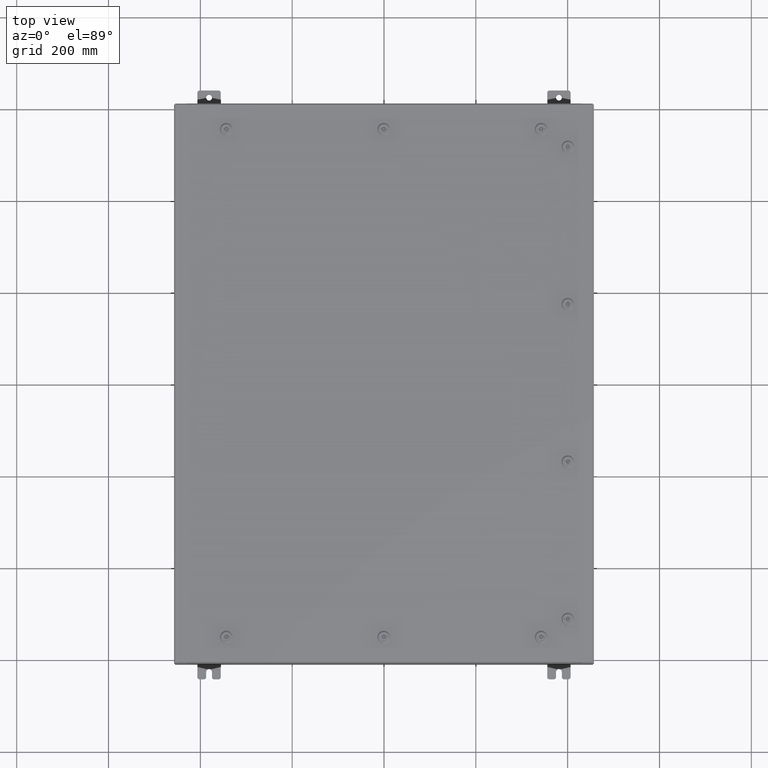
[diagram: clean part render]
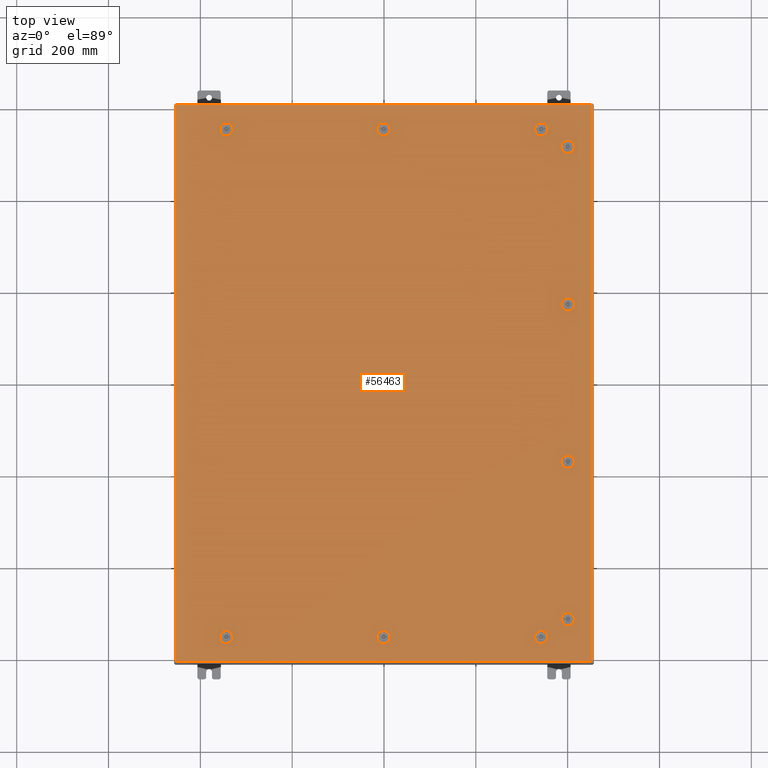
[diagram: same view with one face highlighted and labeled with its STEP entity id]
A machine part, top view. The second image highlights one B-rep face of the part: STEP entity #56463.
In plain terms, the highlighted planar face has unit normal (0, 0, -1).
Its self-contained STEP definition (entity closure, byte-faithful):
#151 = DIRECTION ( 'NONE',  ( -0.0000000000000000000, -6.982962677686266700E-015, 1.000000000000000000 ) ) ;
#445 = LINE ( 'NONE', #2456, #28657 ) ;
#452 = VERTEX_POINT ( 'NONE', #40778 ) ;
#481 = CARTESIAN_POINT ( 'NONE',  ( -13.30054762473209500, -22.18280000000000400, -2.548900087721007400E-013 ) ) ;
#813 = DIRECTION ( 'NONE',  ( -0.0000000000000000000, -6.982962677686266700E-015, 1.000000000000000000 ) ) ;
#815 = DIRECTION ( 'NONE',  ( 0.0000000000000000000, 0.0000000000000000000, 1.000000000000000000 ) ) ;
#875 = CARTESIAN_POINT ( 'NONE',  ( 13.49999999999998600, -21.78780000000000400, -1.578617423656501800E-013 ) ) ;
#877 = EDGE_CURVE ( 'NONE', #452, #2159, #38485, .T. ) ;
#1040 = CARTESIAN_POINT ( 'NONE',  ( 16.18280000000000400, -6.949452375267900300, -4.852776656685392100E-014 ) ) ;
#1126 = FACE_OUTER_BOUND ( 'NONE', #4328, .T. ) ;
#1423 = AXIS2_PLACEMENT_3D ( 'NONE', #13598, #50702, #18946 ) ;
#1432 = CARTESIAN_POINT ( 'NONE',  ( 17.84980000000000200, 23.84980000000000900, 1.946441695485787500E-015 ) ) ;
#1576 = CARTESIAN_POINT ( 'NONE',  ( 16.18280000000000700, 6.550547624732131700, 0.0000000000000000000 ) ) ;
#1625 = CIRCLE ( 'NONE', #2237, 0.4424999999999961700 ) ;
#2030 = DIRECTION ( 'NONE',  ( -5.478697338139235000E-015, 1.000000000000000000, -0.0000000000000000000 ) ) ;
#2127 = DIRECTION ( 'NONE',  ( -1.095739467627844000E-014, -1.000000000000000000, 0.0000000000000000000 ) ) ;
#2159 = VERTEX_POINT ( 'NONE', #36808 ) ;
#2195 = VERTEX_POINT ( 'NONE', #5767 ) ;
#2237 = AXIS2_PLACEMENT_3D ( 'NONE', #15141, #52259, #20482 ) ;
#2456 = CARTESIAN_POINT ( 'NONE',  ( 13.30054762473209400, 22.18280000000000000, -9.287722765629296100E-014 ) ) ;
#2662 = CARTESIAN_POINT ( 'NONE',  ( 13.30054762473210400, -21.39280000000001200, -1.564962406004356200E-013 ) ) ;
#2777 = FACE_BOUND ( 'NONE', #27566, .T. ) ;
#2853 = VERTEX_POINT ( 'NONE', #37448 ) ;
#2885 = VECTOR ( 'NONE', #3082, 39.37007874015748100 ) ;
#3082 = DIRECTION ( 'NONE',  ( -1.000000000000000000, 1.095739467627836100E-014, 0.0000000000000000000 ) ) ;
#3133 = CARTESIAN_POINT ( 'NONE',  ( 16.18280000000001800, -20.05054762473213300, -1.400122257306754800E-013 ) ) ;
#3538 = LINE ( 'NONE', #48995, #44188 ) ;
#3546 = AXIS2_PLACEMENT_3D ( 'NONE', #23193, #60347, #28514 ) ;
#3823 = CIRCLE ( 'NONE', #20616, 0.4424999999999972800 ) ;
#3922 = DIRECTION ( 'NONE',  ( 1.000000000000000000, 1.095739467627836100E-014, 7.785697190085984100E-029 ) ) ;
#4009 = EDGE_CURVE ( 'NONE', #50818, #5964, #62546, .T. ) ;
#4328 = EDGE_LOOP ( 'NONE', ( #17079, #39487, #10814, #16905 ) ) ;
#4430 = FACE_BOUND ( 'NONE', #34896, .T. ) ;
#4479 = EDGE_CURVE ( 'NONE', #15320, #58513, #3538, .T. ) ;
#4734 = CARTESIAN_POINT ( 'NONE',  ( -13.69945237526786700, 22.18280000000000400, 0.0000000000000000000 ) ) ;
#4748 = DIRECTION ( 'NONE',  ( -1.000000000000000000, 0.0000000000000000000, 6.982962677686269100E-015 ) ) ;
#5767 = CARTESIAN_POINT ( 'NONE',  ( 16.18280000000001500, 20.05054762473213300, 0.0000000000000000000 ) ) ;
#5881 = EDGE_CURVE ( 'NONE', #43868, #6467, #44929, .T. ) ;
#5955 = DIRECTION ( 'NONE',  ( -0.0000000000000000000, -6.982962677686266700E-015, 1.000000000000000000 ) ) ;
#5964 = VERTEX_POINT ( 'NONE', #30750 ) ;
#6219 = DIRECTION ( 'NONE',  ( 1.000000000000000000, 0.0000000000000000000, 6.982962677686270700E-015 ) ) ;
#6289 = DIRECTION ( 'NONE',  ( 1.000000000000000000, -0.0000000000000000000, -0.0000000000000000000 ) ) ;
#6408 = CIRCLE ( 'NONE', #31101, 0.4424999999999983400 ) ;
#6467 = VERTEX_POINT ( 'NONE', #51340 ) ;
#6528 = VERTEX_POINT ( 'NONE', #30692 ) ;
#7173 = AXIS2_PLACEMENT_3D ( 'NONE', #50353, #18557, #55689 ) ;
#7189 = AXIS2_PLACEMENT_3D ( 'NONE', #52281, #20510, #57631 ) ;
#7622 = ORIENTED_EDGE ( 'NONE', *, *, #16615, .F. ) ;
#7666 = VERTEX_POINT ( 'NONE', #2662 ) ;
#7702 = VECTOR ( 'NONE', #11515, 39.37007874015748100 ) ;
#7751 = VECTOR ( 'NONE', #41188, 39.37007874015748100 ) ;
#8382 = DIRECTION ( 'NONE',  ( 0.0000000000000000000, 0.0000000000000000000, 1.000000000000000000 ) ) ;
#8643 = ORIENTED_EDGE ( 'NONE', *, *, #53830, .F. ) ;
#8754 = VERTEX_POINT ( 'NONE', #10001 ) ;
#8929 = AXIS2_PLACEMENT_3D ( 'NONE', #36238, #5955, #43013 ) ;
#8992 = ORIENTED_EDGE ( 'NONE', *, *, #59844, .F. ) ;
#9014 = EDGE_CURVE ( 'NONE', #38780, #31095, #39749, .T. ) ;
#9264 = CIRCLE ( 'NONE', #67252, 0.4424999999999961700 ) ;
#9430 = CARTESIAN_POINT ( 'NONE',  ( 15.39280000000001500, -6.949452375267904700, -4.852776656685395200E-014 ) ) ;
#9432 = ORIENTED_EDGE ( 'NONE', *, *, #45145, .F. ) ;
#9568 = LINE ( 'NONE', #28087, #36096 ) ;
#9653 = CARTESIAN_POINT ( 'NONE',  ( 15.39280000000001400, 6.550547624732131700, 0.0000000000000000000 ) ) ;
#9680 = EDGE_LOOP ( 'NONE', ( #50537, #67334, #18964, #8643 ) ) ;
#9976 = DIRECTION ( 'NONE',  ( 0.0000000000000000000, -1.000000000000000000, 0.0000000000000000000 ) ) ;
#10001 = CARTESIAN_POINT ( 'NONE',  ( -0.1994523752678657400, -22.18280000000000700, 0.0000000000000000000 ) ) ;
#10114 = EDGE_CURVE ( 'NONE', #55542, #66249, #43801, .T. ) ;
#10220 = AXIS2_PLACEMENT_3D ( 'NONE', #19849, #56960, #25167 ) ;
#10325 = DIRECTION ( 'NONE',  ( 0.0000000000000000000, 0.0000000000000000000, 1.000000000000000000 ) ) ;
#10358 = ORIENTED_EDGE ( 'NONE', *, *, #11669, .F. ) ;
#10391 = DIRECTION ( 'NONE',  ( -1.000000000000000000, 0.0000000000000000000, 7.785697190086061500E-029 ) ) ;
#10797 = CARTESIAN_POINT ( 'NONE',  ( 13.94249999999998500, -21.78780000000000400, -1.547717813807740000E-013 ) ) ;
#10814 = ORIENTED_EDGE ( 'NONE', *, *, #13343, .T. ) ;
#10947 = CIRCLE ( 'NONE', #8929, 0.4424999999999983400 ) ;
#11170 = CIRCLE ( 'NONE', #68373, 0.4424999999999983400 ) ;
#11291 = VERTEX_POINT ( 'NONE', #39194 ) ;
#11375 = VERTEX_POINT ( 'NONE', #23438 ) ;
#11383 = EDGE_CURVE ( 'NONE', #67683, #65674, #60391, .T. ) ;
#11465 = CARTESIAN_POINT ( 'NONE',  ( 13.30054762473210400, -21.39280000000001200, -1.564962406004356200E-013 ) ) ;
#11515 = DIRECTION ( 'NONE',  ( 5.478697338139235000E-015, 1.000000000000000000, 6.982962677686265900E-015 ) ) ;
#11669 = EDGE_CURVE ( 'NONE', #58645, #44529, #23799, .T. ) ;
#11671 = ORIENTED_EDGE ( 'NONE', *, *, #15699, .F. ) ;
#11680 = DIRECTION ( 'NONE',  ( -1.000000000000000000, 0.0000000000000000000, 7.785697190086082800E-029 ) ) ;
#11712 = VERTEX_POINT ( 'NONE', #42050 ) ;
#11818 = CIRCLE ( 'NONE', #10220, 0.4424999999999983400 ) ;
#11866 = CARTESIAN_POINT ( 'NONE',  ( -17.84979999999999800, -23.84980000000000200, 1.946441695485787500E-015 ) ) ;
#12139 = VERTEX_POINT ( 'NONE', #66018 ) ;
#12288 = CARTESIAN_POINT ( 'NONE',  ( 0.1994523752679054600, 22.18280000000000000, 0.0000000000000000000 ) ) ;
#12426 = CARTESIAN_POINT ( 'NONE',  ( 0.4425000000000125500, 21.78780000000000400, 0.0000000000000000000 ) ) ;
#12460 = DIRECTION ( 'NONE',  ( -1.000000000000000000, -1.095739467627832000E-014, 6.982962677686228800E-015 ) ) ;
#12645 = CARTESIAN_POINT ( 'NONE',  ( 13.69945237526786700, 22.18280000000000400, 0.0000000000000000000 ) ) ;
#12794 = CARTESIAN_POINT ( 'NONE',  ( 15.39280000000002200, 20.44945237526790300, 0.0000000000000000000 ) ) ;
#12906 = DIRECTION ( 'NONE',  ( -0.0000000000000000000, -6.982962677686266700E-015, 1.000000000000000000 ) ) ;
#13050 = AXIS2_PLACEMENT_3D ( 'NONE', #68350, #36506, #4748 ) ;
#13130 = DIRECTION ( 'NONE',  ( -1.000000000000000000, -0.0000000000000000000, -0.0000000000000000000 ) ) ;
#13154 = EDGE_CURVE ( 'NONE', #22547, #59006, #49407, .T. ) ;
#13172 = CARTESIAN_POINT ( 'NONE',  ( 16.18280000000001100, 20.44945237526789600, 0.0000000000000000000 ) ) ;
#13338 = EDGE_CURVE ( 'NONE', #44529, #25451, #445, .T. ) ;
#13343 = EDGE_CURVE ( 'NONE', #18562, #11291, #56861, .T. ) ;
#13598 = CARTESIAN_POINT ( 'NONE',  ( 1.529834876451987200E-014, -21.78780000000000400, -2.521317385144146900E-013 ) ) ;
#13797 = CARTESIAN_POINT ( 'NONE',  ( 15.39280000000002800, -20.44945237526790300, -1.427977627156185600E-013 ) ) ;
#14076 = CARTESIAN_POINT ( 'NONE',  ( 13.69945237526786900, -22.18280000000000400, -1.592272441308647100E-013 ) ) ;
#14204 = CARTESIAN_POINT ( 'NONE',  ( 16.18280000000001100, 20.44945237526789600, 0.0000000000000000000 ) ) ;
#14213 = CARTESIAN_POINT ( 'NONE',  ( 15.78780000000001000, 6.750000000000014200, 0.0000000000000000000 ) ) ;
#14303 = LINE ( 'NONE', #481, #54989 ) ;
#14324 = DIRECTION ( 'NONE',  ( 0.0000000000000000000, 0.0000000000000000000, 1.000000000000000000 ) ) ;
#14787 = VECTOR ( 'NONE', #10391, 39.37007874015748100 ) ;
#14815 = LINE ( 'NONE', #58444, #55482 ) ;
#14841 = CARTESIAN_POINT ( 'NONE',  ( -13.69945237526786900, -22.18280000000000700, 0.0000000000000000000 ) ) ;
#15043 = VECTOR ( 'NONE', #2030, 39.37007874015748100 ) ;
#15141 = CARTESIAN_POINT ( 'NONE',  ( -13.49999999999998600, 21.78780000000000400, 0.0000000000000000000 ) ) ;
#15174 = VECTOR ( 'NONE', #9976, 39.37007874015748100 ) ;
#15198 = FACE_BOUND ( 'NONE', #21081, .T. ) ;
#15320 = VERTEX_POINT ( 'NONE', #11866 ) ;
#15420 = CARTESIAN_POINT ( 'NONE',  ( 0.1994523752679054600, -22.18280000000000000, -2.548900087721007400E-013 ) ) ;
#15699 = EDGE_CURVE ( 'NONE', #8754, #44317, #33601, .T. ) ;
#15962 = DIRECTION ( 'NONE',  ( 1.000000000000000000, -0.0000000000000000000, -0.0000000000000000000 ) ) ;
#16467 = LINE ( 'NONE', #47462, #14787 ) ;
#16615 = EDGE_CURVE ( 'NONE', #18484, #2195, #39322, .T. ) ;
#16879 = FACE_BOUND ( 'NONE', #18989, .T. ) ;
#16905 = ORIENTED_EDGE ( 'NONE', *, *, #40467, .T. ) ;
#16972 = CIRCLE ( 'NONE', #66936, 0.4424999999999961700 ) ;
#17079 = ORIENTED_EDGE ( 'NONE', *, *, #4479, .T. ) ;
#17199 = AXIS2_PLACEMENT_3D ( 'NONE', #50224, #18436, #55575 ) ;
#17218 = CARTESIAN_POINT ( 'NONE',  ( -13.49999999999998600, -21.78780000000000800, -2.521317385144146900E-013 ) ) ;
#17225 = DIRECTION ( 'NONE',  ( 1.000000000000000000, -0.0000000000000000000, -0.0000000000000000000 ) ) ;
#17273 = VERTEX_POINT ( 'NONE', #17356 ) ;
#17288 = CARTESIAN_POINT ( 'NONE',  ( 13.49999999999998600, -21.78780000000000400, -1.578617423656501800E-013 ) ) ;
#17356 = CARTESIAN_POINT ( 'NONE',  ( 16.18280000000000400, -6.949452375267900300, -4.852776656685392100E-014 ) ) ;
#17603 = EDGE_CURVE ( 'NONE', #11375, #6528, #50038, .T. ) ;
#18436 = DIRECTION ( 'NONE',  ( 0.0000000000000000000, 0.0000000000000000000, 1.000000000000000000 ) ) ;
#18484 = VERTEX_POINT ( 'NONE', #32750 ) ;
#18557 = DIRECTION ( 'NONE',  ( 6.982962677686266700E-015, -0.0000000000000000000, 1.000000000000000000 ) ) ;
#18562 = VERTEX_POINT ( 'NONE', #1432 ) ;
#18601 = CARTESIAN_POINT ( 'NONE',  ( 13.49999999999998600, 21.78780000000000400, -9.426999614876453700E-014 ) ) ;
#18631 = ORIENTED_EDGE ( 'NONE', *, *, #46055, .F. ) ;
#18867 = LINE ( 'NONE', #59171, #45412 ) ;
#18944 = EDGE_CURVE ( 'NONE', #62776, #11375, #11818, .T. ) ;
#18946 = DIRECTION ( 'NONE',  ( 0.0000000000000000000, 1.000000000000000000, 6.982962677686270700E-015 ) ) ;
#18964 = ORIENTED_EDGE ( 'NONE', *, *, #59647, .F. ) ;
#18989 = EDGE_LOOP ( 'NONE', ( #52145, #40670, #54957, #67703, #62844 ) ) ;
#18997 = ORIENTED_EDGE ( 'NONE', *, *, #27813, .F. ) ;
#19013 = VERTEX_POINT ( 'NONE', #9653 ) ;
#19303 = EDGE_CURVE ( 'NONE', #44317, #20862, #10947, .T. ) ;
#19561 = DIRECTION ( 'NONE',  ( 1.000000000000000000, 0.0000000000000000000, 0.0000000000000000000 ) ) ;
#19600 = ORIENTED_EDGE ( 'NONE', *, *, #29322, .F. ) ;
#19707 = CARTESIAN_POINT ( 'NONE',  ( 0.0000000000000000000, 0.0000000000000000000, 0.0000000000000000000 ) ) ;
#19798 = CARTESIAN_POINT ( 'NONE',  ( 15.78780000000001500, 20.25000000000001400, 0.0000000000000000000 ) ) ;
#19849 = CARTESIAN_POINT ( 'NONE',  ( 15.78780000000000800, -6.750000000000014200, -4.713499807438240100E-014 ) ) ;
#20482 = DIRECTION ( 'NONE',  ( 1.000000000000000000, 0.0000000000000000000, 0.0000000000000000000 ) ) ;
#20510 = DIRECTION ( 'NONE',  ( -0.0000000000000000000, -6.982962677686266700E-015, 1.000000000000000000 ) ) ;
#20616 = AXIS2_PLACEMENT_3D ( 'NONE', #32579, #815, #37896 ) ;
#20808 = CARTESIAN_POINT ( 'NONE',  ( -0.1994523752678689600, 21.39280000000001200, 0.0000000000000000000 ) ) ;
#20862 = VERTEX_POINT ( 'NONE', #23436 ) ;
#21081 = EDGE_LOOP ( 'NONE', ( #30777, #34651, #21531, #9432, #46795 ) ) ;
#21178 = LINE ( 'NONE', #12794, #47743 ) ;
#21531 = ORIENTED_EDGE ( 'NONE', *, *, #29426, .F. ) ;
#21547 = CARTESIAN_POINT ( 'NONE',  ( 15.39280000000001900, 6.949452375267904700, 0.0000000000000000000 ) ) ;
#21818 = CARTESIAN_POINT ( 'NONE',  ( 15.78780000000001800, -20.25000000000001400, -1.414049942231469700E-013 ) ) ;
#22072 = VERTEX_POINT ( 'NONE', #38708 ) ;
#22079 = CARTESIAN_POINT ( 'NONE',  ( 1.529834876451987200E-014, 21.78780000000000400, 0.0000000000000000000 ) ) ;
#22547 = VERTEX_POINT ( 'NONE', #14076 ) ;
#22552 = DIRECTION ( 'NONE',  ( 0.0000000000000000000, 1.000000000000000000, 6.982962677686270700E-015 ) ) ;
#22629 = DIRECTION ( 'NONE',  ( 1.000000000000000000, 0.0000000000000000000, 6.982962677686304600E-015 ) ) ;
#22641 = ORIENTED_EDGE ( 'NONE', *, *, #50021, .F. ) ;
#23000 = VECTOR ( 'NONE', #41820, 39.37007874015748100 ) ;
#23169 = CARTESIAN_POINT ( 'NONE',  ( 16.18280000000000700, 6.949452375267900300, 0.0000000000000000000 ) ) ;
#23193 = CARTESIAN_POINT ( 'NONE',  ( 13.49999999999998600, -21.78780000000000400, -1.578617423656501800E-013 ) ) ;
#23370 = CARTESIAN_POINT ( 'NONE',  ( 1.529834876451987200E-014, -21.78780000000000400, -2.521317385144146900E-013 ) ) ;
#23436 = CARTESIAN_POINT ( 'NONE',  ( 0.4425000000000125500, -21.78780000000000400, -2.521317385144146900E-013 ) ) ;
#23438 = CARTESIAN_POINT ( 'NONE',  ( 15.39280000000001200, -6.550547624732131700, 0.0000000000000000000 ) ) ;
#23799 = CIRCLE ( 'NONE', #13050, 0.4424999999999961700 ) ;
#23952 = DIRECTION ( 'NONE',  ( -1.000000000000000000, 0.0000000000000000000, 6.982962677686269100E-015 ) ) ;
#24088 = CARTESIAN_POINT ( 'NONE',  ( 0.1994523752678995500, 21.39280000000001200, 0.0000000000000000000 ) ) ;
#24306 = CARTESIAN_POINT ( 'NONE',  ( 15.39280000000002200, -20.05054762473213300, 0.0000000000000000000 ) ) ;
#24320 = EDGE_CURVE ( 'NONE', #38923, #52822, #60640, .T. ) ;
#24490 = CARTESIAN_POINT ( 'NONE',  ( 13.69945237526787100, -21.39280000000001200, 0.0000000000000000000 ) ) ;
#24605 = LINE ( 'NONE', #11465, #40370 ) ;
#24672 = ORIENTED_EDGE ( 'NONE', *, *, #43309, .F. ) ;
#25024 = DIRECTION ( 'NONE',  ( 0.0000000000000000000, 0.0000000000000000000, -1.000000000000000000 ) ) ;
#25114 = DIRECTION ( 'NONE',  ( 1.000000000000000000, 0.0000000000000000000, 0.0000000000000000000 ) ) ;
#25167 = DIRECTION ( 'NONE',  ( 0.0000000000000000000, 1.000000000000000000, 6.982962677686252500E-015 ) ) ;
#25451 = VERTEX_POINT ( 'NONE', #42432 ) ;
#25486 = LINE ( 'NONE', #14204, #52034 ) ;
#26236 = EDGE_CURVE ( 'NONE', #55442, #28624, #16467, .T. ) ;
#26880 = DIRECTION ( 'NONE',  ( -1.095739467627835000E-014, -1.000000000000000000, 0.0000000000000000000 ) ) ;
#26905 = VERTEX_POINT ( 'NONE', #4734 ) ;
#27000 = VECTOR ( 'NONE', #13130, 39.37007874015748100 ) ;
#27169 = DIRECTION ( 'NONE',  ( 0.0000000000000000000, 1.000000000000000000, 6.982962677686235200E-015 ) ) ;
#27424 = DIRECTION ( 'NONE',  ( 1.000000000000000000, 0.0000000000000000000, 0.0000000000000000000 ) ) ;
#27537 = DIRECTION ( 'NONE',  ( 0.0000000000000000000, 0.0000000000000000000, 1.000000000000000000 ) ) ;
#27566 = EDGE_LOOP ( 'NONE', ( #55258, #31611, #18631, #67944, #52313 ) ) ;
#27568 = ORIENTED_EDGE ( 'NONE', *, *, #54204, .F. ) ;
#27813 = EDGE_CURVE ( 'NONE', #41139, #26905, #65413, .T. ) ;
#27838 = AXIS2_PLACEMENT_3D ( 'NONE', #32576, #813, #37894 ) ;
#28087 = CARTESIAN_POINT ( 'NONE',  ( 13.30054762473209500, -22.18280000000000000, -1.620127811158077400E-013 ) ) ;
#28166 = ORIENTED_EDGE ( 'NONE', *, *, #57999, .F. ) ;
#28514 = DIRECTION ( 'NONE',  ( 1.000000000000000000, 0.0000000000000000000, 6.982962677686270700E-015 ) ) ;
#28586 = AXIS2_PLACEMENT_3D ( 'NONE', #40104, #8382, #45449 ) ;
#28624 = VERTEX_POINT ( 'NONE', #64193 ) ;
#28657 = VECTOR ( 'NONE', #12460, 39.37007874015748100 ) ;
#28705 = DIRECTION ( 'NONE',  ( 0.0000000000000000000, 1.000000000000000000, 6.982962677686270700E-015 ) ) ;
#28738 = CIRCLE ( 'NONE', #7173, 0.4424999999999983400 ) ;
#29023 = EDGE_CURVE ( 'NONE', #66226, #51844, #3823, .T. ) ;
#29214 = CIRCLE ( 'NONE', #40043, 0.4424999999999983400 ) ;
#29322 = EDGE_CURVE ( 'NONE', #56972, #58645, #16972, .T. ) ;
#29330 = FACE_BOUND ( 'NONE', #53106, .T. ) ;
#29348 = CARTESIAN_POINT ( 'NONE',  ( 16.18280000000001500, -20.44945237526789600, -1.427977627156185100E-013 ) ) ;
#29426 = EDGE_CURVE ( 'NONE', #49445, #67683, #55985, .T. ) ;
#29810 = DIRECTION ( 'NONE',  ( 1.095739467627844000E-014, -1.000000000000000000, -6.982962677686384300E-015 ) ) ;
#30692 = CARTESIAN_POINT ( 'NONE',  ( 15.39280000000001500, -6.949452375267905600, -4.852776656685395900E-014 ) ) ;
#30712 = AXIS2_PLACEMENT_3D ( 'NONE', #19798, #56901, #25114 ) ;
#30750 = CARTESIAN_POINT ( 'NONE',  ( 16.18280000000001500, -20.44945237526789600, -1.427977627156185100E-013 ) ) ;
#30765 = CARTESIAN_POINT ( 'NONE',  ( -13.30054762473209400, 22.18280000000000000, 0.0000000000000000000 ) ) ;
#30777 = ORIENTED_EDGE ( 'NONE', *, *, #43736, .F. ) ;
#30971 = FACE_BOUND ( 'NONE', #9680, .T. ) ;
#31095 = VERTEX_POINT ( 'NONE', #35762 ) ;
#31101 = AXIS2_PLACEMENT_3D ( 'NONE', #14213, #51329, #19561 ) ;
#31611 = ORIENTED_EDGE ( 'NONE', *, *, #24320, .F. ) ;
#31738 = EDGE_CURVE ( 'NONE', #52822, #12139, #14303, .T. ) ;
#31933 = CARTESIAN_POINT ( 'NONE',  ( 15.78780000000001800, -20.25000000000001400, -1.414049942231469700E-013 ) ) ;
#32033 = CARTESIAN_POINT ( 'NONE',  ( 15.39280000000001900, 6.949452375267904700, 0.0000000000000000000 ) ) ;
#32368 = EDGE_CURVE ( 'NONE', #66249, #50818, #35011, .T. ) ;
#32542 = LINE ( 'NONE', #21547, #60817 ) ;
#32576 = CARTESIAN_POINT ( 'NONE',  ( 15.78780000000000800, -6.750000000000014200, -4.713499807438240100E-014 ) ) ;
#32579 = CARTESIAN_POINT ( 'NONE',  ( 1.529834876451987200E-014, 21.78780000000000400, 0.0000000000000000000 ) ) ;
#32750 = CARTESIAN_POINT ( 'NONE',  ( 15.39280000000001900, 20.05054762473213300, 0.0000000000000000000 ) ) ;
#33243 = EDGE_LOOP ( 'NONE', ( #22641, #7622, #60239, #54322 ) ) ;
#33412 = DIRECTION ( 'NONE',  ( 1.000000000000000000, -1.095739467627832000E-014, 6.982962677686152300E-015 ) ) ;
#33601 = LINE ( 'NONE', #40987, #47691 ) ;
#34651 = ORIENTED_EDGE ( 'NONE', *, *, #11383, .F. ) ;
#34891 = EDGE_CURVE ( 'NONE', #59006, #67205, #66474, .T. ) ;
#34896 = EDGE_LOOP ( 'NONE', ( #68210, #40221, #27568, #42220 ) ) ;
#35011 = LINE ( 'NONE', #13797, #66654 ) ;
#35197 = EDGE_CURVE ( 'NONE', #26905, #36368, #1625, .T. ) ;
#35762 = CARTESIAN_POINT ( 'NONE',  ( 15.39280000000002200, 20.44945237526790300, 0.0000000000000000000 ) ) ;
#36096 = VECTOR ( 'NONE', #33412, 39.37007874015748100 ) ;
#36238 = CARTESIAN_POINT ( 'NONE',  ( 1.529834876451987200E-014, -21.78780000000000400, -2.521317385144146900E-013 ) ) ;
#36285 = CARTESIAN_POINT ( 'NONE',  ( 17.84980000000000200, -23.84980000000000200, -2.048885995248197400E-016 ) ) ;
#36368 = VERTEX_POINT ( 'NONE', #55584 ) ;
#36505 = CARTESIAN_POINT ( 'NONE',  ( -13.30054762473209400, 22.18280000000000000, 0.0000000000000000000 ) ) ;
#36506 = DIRECTION ( 'NONE',  ( 6.982962677686266700E-015, -0.0000000000000000000, 1.000000000000000000 ) ) ;
#36808 = CARTESIAN_POINT ( 'NONE',  ( -13.30054762473210400, -21.39280000000001500, -2.493734682567286900E-013 ) ) ;
#37142 = EDGE_CURVE ( 'NONE', #28624, #8754, #67772, .T. ) ;
#37254 = DIRECTION ( 'NONE',  ( 0.0000000000000000000, 1.000000000000000000, 6.982962677686235200E-015 ) ) ;
#37311 = AXIS2_PLACEMENT_3D ( 'NONE', #22079, #59209, #27424 ) ;
#37448 = CARTESIAN_POINT ( 'NONE',  ( 13.30054762473209500, -22.18280000000000000, -1.620127811158077400E-013 ) ) ;
#37485 = CIRCLE ( 'NONE', #43771, 0.4424999999999983400 ) ;
#37562 = DIRECTION ( 'NONE',  ( 1.000000000000000000, 1.095739467627832000E-014, 7.785697190085955000E-029 ) ) ;
#37844 = CARTESIAN_POINT ( 'NONE',  ( 15.39280000000002800, -20.44945237526790300, -1.427977627156185100E-013 ) ) ;
#37894 = DIRECTION ( 'NONE',  ( 0.0000000000000000000, 1.000000000000000000, 6.982962677686269100E-015 ) ) ;
#37896 = DIRECTION ( 'NONE',  ( 1.000000000000000000, 0.0000000000000000000, 0.0000000000000000000 ) ) ;
#37963 = DIRECTION ( 'NONE',  ( -6.982962677686266700E-015, -6.982962677686266700E-015, 1.000000000000000000 ) ) ;
#38485 = CIRCLE ( 'NONE', #58285, 0.4424999999999983400 ) ;
#38708 = CARTESIAN_POINT ( 'NONE',  ( -13.30054762473210200, 21.39280000000001200, 0.0000000000000000000 ) ) ;
#38780 = VERTEX_POINT ( 'NONE', #13172 ) ;
#38923 = VERTEX_POINT ( 'NONE', #50708 ) ;
#39194 = CARTESIAN_POINT ( 'NONE',  ( -17.84979999999998100, 23.84980000000000900, -1.297627796990525000E-015 ) ) ;
#39322 = CIRCLE ( 'NONE', #17199, 0.4424999999999961700 ) ;
#39487 = ORIENTED_EDGE ( 'NONE', *, *, #45047, .T. ) ;
#39749 = CIRCLE ( 'NONE', #30712, 0.4424999999999961700 ) ;
#40043 = AXIS2_PLACEMENT_3D ( 'NONE', #23370, #60538, #28705 ) ;
#40104 = CARTESIAN_POINT ( 'NONE',  ( 1.529834876451987200E-014, 21.78780000000000400, 0.0000000000000000000 ) ) ;
#40221 = ORIENTED_EDGE ( 'NONE', *, *, #10114, .F. ) ;
#40370 = VECTOR ( 'NONE', #59001, 39.37007874015748100 ) ;
#40467 = EDGE_CURVE ( 'NONE', #11291, #15320, #59222, .T. ) ;
#40670 = ORIENTED_EDGE ( 'NONE', *, *, #34891, .F. ) ;
#40719 = CARTESIAN_POINT ( 'NONE',  ( 13.30054762473210200, 21.39280000000001200, -9.287722765629301200E-014 ) ) ;
#40778 = CARTESIAN_POINT ( 'NONE',  ( -13.05749999999999000, -21.78780000000000800, -2.521317385144146900E-013 ) ) ;
#40814 = CIRCLE ( 'NONE', #43094, 0.4424999999999983400 ) ;
#40987 = CARTESIAN_POINT ( 'NONE',  ( 0.1994523752679067700, -22.18280000000000000, -2.548900087721007400E-013 ) ) ;
#41071 = EDGE_CURVE ( 'NONE', #17273, #62776, #65874, .T. ) ;
#41139 = VERTEX_POINT ( 'NONE', #30765 ) ;
#41188 = DIRECTION ( 'NONE',  ( 1.095739467627835000E-014, -1.000000000000000000, -6.982962677686269100E-015 ) ) ;
#41505 = ORIENTED_EDGE ( 'NONE', *, *, #46324, .F. ) ;
#41602 = DIRECTION ( 'NONE',  ( 0.0000000000000000000, 1.000000000000000000, 0.0000000000000000000 ) ) ;
#41700 = CARTESIAN_POINT ( 'NONE',  ( -17.84979999999998100, 23.84980000000000900, -1.297627796990525000E-015 ) ) ;
#41779 = LINE ( 'NONE', #29348, #55919 ) ;
#41820 = DIRECTION ( 'NONE',  ( -1.000000000000000000, 1.095739467627832000E-014, 0.0000000000000000000 ) ) ;
#41828 = CARTESIAN_POINT ( 'NONE',  ( 13.30054762473210200, 21.39280000000001200, -9.287722765629301200E-014 ) ) ;
#41841 = EDGE_CURVE ( 'NONE', #62876, #56972, #51567, .T. ) ;
#41869 = EDGE_CURVE ( 'NONE', #11712, #41139, #37485, .T. ) ;
#42050 = CARTESIAN_POINT ( 'NONE',  ( -13.05749999999998900, 21.78780000000000400, 0.0000000000000000000 ) ) ;
#42062 = CARTESIAN_POINT ( 'NONE',  ( -13.49999999999998600, 21.78780000000000400, 0.0000000000000000000 ) ) ;
#42220 = ORIENTED_EDGE ( 'NONE', *, *, #4009, .F. ) ;
#42432 = CARTESIAN_POINT ( 'NONE',  ( 13.30054762473209400, 22.18280000000000000, -9.287722765629296100E-014 ) ) ;
#43013 = DIRECTION ( 'NONE',  ( 0.0000000000000000000, 1.000000000000000000, 6.982962677686270700E-015 ) ) ;
#43094 = AXIS2_PLACEMENT_3D ( 'NONE', #46107, #14324, #51436 ) ;
#43309 = EDGE_CURVE ( 'NONE', #6528, #17273, #67194, .T. ) ;
#43386 = CARTESIAN_POINT ( 'NONE',  ( -13.30054762473210400, -21.39280000000001500, -2.493734682567286900E-013 ) ) ;
#43406 = FACE_BOUND ( 'NONE', #57141, .T. ) ;
#43736 = EDGE_CURVE ( 'NONE', #65674, #66226, #14815, .T. ) ;
#43771 = AXIS2_PLACEMENT_3D ( 'NONE', #42062, #10325, #47405 ) ;
#43801 = CIRCLE ( 'NONE', #55210, 0.4424999999999983400 ) ;
#43868 = VERTEX_POINT ( 'NONE', #1576 ) ;
#44188 = VECTOR ( 'NONE', #17225, 39.37007874015748100 ) ;
#44317 = VERTEX_POINT ( 'NONE', #15420 ) ;
#44529 = VERTEX_POINT ( 'NONE', #12645 ) ;
#44675 = CARTESIAN_POINT ( 'NONE',  ( -13.49999999999998600, -21.78780000000000800, -2.521317385144146900E-013 ) ) ;
#44867 = ORIENTED_EDGE ( 'NONE', *, *, #17603, .F. ) ;
#44929 = LINE ( 'NONE', #23169, #15043 ) ;
#45047 = EDGE_CURVE ( 'NONE', #58513, #18562, #68732, .T. ) ;
#45080 = FACE_BOUND ( 'NONE', #33243, .T. ) ;
#45145 = EDGE_CURVE ( 'NONE', #51844, #49445, #65443, .T. ) ;
#45412 = VECTOR ( 'NONE', #6289, 39.37007874015748100 ) ;
#45449 = DIRECTION ( 'NONE',  ( 1.000000000000000000, 0.0000000000000000000, 0.0000000000000000000 ) ) ;
#45656 = EDGE_CURVE ( 'NONE', #19013, #43868, #6408, .T. ) ;
#46036 = EDGE_CURVE ( 'NONE', #67205, #7666, #24605, .T. ) ;
#46055 = EDGE_CURVE ( 'NONE', #2159, #38923, #49501, .T. ) ;
#46107 = CARTESIAN_POINT ( 'NONE',  ( -13.49999999999998600, 21.78780000000000400, 0.0000000000000000000 ) ) ;
#46180 = ORIENTED_EDGE ( 'NONE', *, *, #37142, .F. ) ;
#46324 = EDGE_CURVE ( 'NONE', #25451, #62876, #28738, .T. ) ;
#46795 = ORIENTED_EDGE ( 'NONE', *, *, #29023, .F. ) ;
#47169 = DIRECTION ( 'NONE',  ( 1.000000000000000000, 0.0000000000000000000, -6.982962677686306200E-015 ) ) ;
#47405 = DIRECTION ( 'NONE',  ( 1.000000000000000000, 0.0000000000000000000, 0.0000000000000000000 ) ) ;
#47462 = CARTESIAN_POINT ( 'NONE',  ( 0.1994523752678995500, -21.39280000000001200, -2.493734682567286900E-013 ) ) ;
#47482 = EDGE_CURVE ( 'NONE', #2853, #22547, #9568, .T. ) ;
#47612 = ORIENTED_EDGE ( 'NONE', *, *, #13338, .F. ) ;
#47618 = CARTESIAN_POINT ( 'NONE',  ( -0.1994523752678657400, 22.18280000000000400, 0.0000000000000000000 ) ) ;
#47691 = VECTOR ( 'NONE', #3922, 39.37007874015748100 ) ;
#47743 = VECTOR ( 'NONE', #2127, 39.37007874015748100 ) ;
#48434 = FACE_BOUND ( 'NONE', #49497, .T. ) ;
#48465 = AXIS2_PLACEMENT_3D ( 'NONE', #17218, #54337, #22552 ) ;
#48995 = CARTESIAN_POINT ( 'NONE',  ( -17.84979999999999800, -23.84980000000000200, 1.946441695485787500E-015 ) ) ;
#49407 = CIRCLE ( 'NONE', #55315, 0.4424999999999983400 ) ;
#49445 = VERTEX_POINT ( 'NONE', #12288 ) ;
#49497 = EDGE_LOOP ( 'NONE', ( #44867, #55359, #56068, #24672 ) ) ;
#49501 = LINE ( 'NONE', #43386, #65375 ) ;
#50001 = DIRECTION ( 'NONE',  ( 0.0000000000000000000, 1.000000000000000000, 6.982962677686270700E-015 ) ) ;
#50021 = EDGE_CURVE ( 'NONE', #2195, #38780, #25486, .T. ) ;
#50038 = LINE ( 'NONE', #9430, #7751 ) ;
#50224 = CARTESIAN_POINT ( 'NONE',  ( 15.78780000000001500, 20.25000000000001400, 0.0000000000000000000 ) ) ;
#50353 = CARTESIAN_POINT ( 'NONE',  ( 13.49999999999998600, 21.78780000000000400, -9.426999614876453700E-014 ) ) ;
#50537 = ORIENTED_EDGE ( 'NONE', *, *, #5881, .F. ) ;
#50702 = DIRECTION ( 'NONE',  ( -0.0000000000000000000, -6.982962677686266700E-015, 1.000000000000000000 ) ) ;
#50708 = CARTESIAN_POINT ( 'NONE',  ( -13.69945237526787100, -21.39280000000001500, -2.493734682567286400E-013 ) ) ;
#50818 = VERTEX_POINT ( 'NONE', #37844 ) ;
#51070 = CARTESIAN_POINT ( 'NONE',  ( 0.1994523752679067700, 22.18280000000000000, 0.0000000000000000000 ) ) ;
#51239 = AXIS2_PLACEMENT_3D ( 'NONE', #21818, #58965, #27169 ) ;
#51313 = DIRECTION ( 'NONE',  ( -5.478697338139280000E-015, 1.000000000000000000, -0.0000000000000000000 ) ) ;
#51329 = DIRECTION ( 'NONE',  ( 0.0000000000000000000, 0.0000000000000000000, 1.000000000000000000 ) ) ;
#51340 = CARTESIAN_POINT ( 'NONE',  ( 16.18280000000000700, 6.949452375267900300, 0.0000000000000000000 ) ) ;
#51436 = DIRECTION ( 'NONE',  ( 1.000000000000000000, 0.0000000000000000000, 0.0000000000000000000 ) ) ;
#51461 = PLANE ( 'NONE',  #51927 ) ;
#51567 = LINE ( 'NONE', #41828, #65813 ) ;
#51844 = VERTEX_POINT ( 'NONE', #12426 ) ;
#51927 = AXIS2_PLACEMENT_3D ( 'NONE', #19707, #25024, #62202 ) ;
#52034 = VECTOR ( 'NONE', #51313, 39.37007874015748100 ) ;
#52145 = ORIENTED_EDGE ( 'NONE', *, *, #46036, .F. ) ;
#52259 = DIRECTION ( 'NONE',  ( 0.0000000000000000000, 0.0000000000000000000, 1.000000000000000000 ) ) ;
#52281 = CARTESIAN_POINT ( 'NONE',  ( -13.49999999999998600, -21.78780000000000800, -2.521317385144146900E-013 ) ) ;
#52313 = ORIENTED_EDGE ( 'NONE', *, *, #58835, .F. ) ;
#52553 = EDGE_CURVE ( 'NONE', #31095, #18484, #21178, .T. ) ;
#52822 = VERTEX_POINT ( 'NONE', #14841 ) ;
#52901 = VECTOR ( 'NONE', #41602, 39.37007874015748100 ) ;
#53106 = EDGE_LOOP ( 'NONE', ( #58473, #56830, #18997, #65652, #28166 ) ) ;
#53830 = EDGE_CURVE ( 'NONE', #6467, #68821, #11170, .T. ) ;
#54204 = EDGE_CURVE ( 'NONE', #5964, #55542, #41779, .T. ) ;
#54322 = ORIENTED_EDGE ( 'NONE', *, *, #9014, .F. ) ;
#54337 = DIRECTION ( 'NONE',  ( -0.0000000000000000000, -6.982962677686266700E-015, 1.000000000000000000 ) ) ;
#54420 = DIRECTION ( 'NONE',  ( -6.982962677686266700E-015, -6.982962677686266700E-015, 1.000000000000000000 ) ) ;
#54957 = ORIENTED_EDGE ( 'NONE', *, *, #13154, .F. ) ;
#54989 = VECTOR ( 'NONE', #37562, 39.37007874015748100 ) ;
#55210 = AXIS2_PLACEMENT_3D ( 'NONE', #31933, #151, #37254 ) ;
#55258 = ORIENTED_EDGE ( 'NONE', *, *, #31738, .F. ) ;
#55278 = ORIENTED_EDGE ( 'NONE', *, *, #41841, .F. ) ;
#55315 = AXIS2_PLACEMENT_3D ( 'NONE', #875, #37963, #6219 ) ;
#55359 = ORIENTED_EDGE ( 'NONE', *, *, #18944, .F. ) ;
#55442 = VERTEX_POINT ( 'NONE', #55561 ) ;
#55482 = VECTOR ( 'NONE', #15962, 39.37007874015748100 ) ;
#55542 = VERTEX_POINT ( 'NONE', #3133 ) ;
#55561 = CARTESIAN_POINT ( 'NONE',  ( 0.1994523752678995500, -21.39280000000001200, -2.493734682567286900E-013 ) ) ;
#55575 = DIRECTION ( 'NONE',  ( 1.000000000000000000, 0.0000000000000000000, 0.0000000000000000000 ) ) ;
#55584 = CARTESIAN_POINT ( 'NONE',  ( -13.69945237526786900, 21.39280000000001200, 0.0000000000000000000 ) ) ;
#55689 = DIRECTION ( 'NONE',  ( -1.000000000000000000, 0.0000000000000000000, 6.982962677686270700E-015 ) ) ;
#55729 = DIRECTION ( 'NONE',  ( 6.982962677686266700E-015, -0.0000000000000000000, 1.000000000000000000 ) ) ;
#55831 = CIRCLE ( 'NONE', #7189, 0.4424999999999983400 ) ;
#55919 = VECTOR ( 'NONE', #61188, 39.37007874015748100 ) ;
#55985 = LINE ( 'NONE', #51070, #2885 ) ;
#56057 = CARTESIAN_POINT ( 'NONE',  ( 16.18280000000000700, -6.550547624732131700, -4.574222958191090100E-014 ) ) ;
#56068 = ORIENTED_EDGE ( 'NONE', *, *, #41071, .F. ) ;
#56463 = ADVANCED_FACE ( 'NONE', ( #4430, #48434, #45080, #30971, #16879, #2777, #57544, #43406, #29330, #15198, #1126 ), #51461, .F. ) ;
#56830 = ORIENTED_EDGE ( 'NONE', *, *, #35197, .F. ) ;
#56861 = LINE ( 'NONE', #65184, #27000 ) ;
#56901 = DIRECTION ( 'NONE',  ( 0.0000000000000000000, 0.0000000000000000000, 1.000000000000000000 ) ) ;
#56960 = DIRECTION ( 'NONE',  ( -0.0000000000000000000, -6.982962677686266700E-015, 1.000000000000000000 ) ) ;
#56972 = VERTEX_POINT ( 'NONE', #59839 ) ;
#57141 = EDGE_LOOP ( 'NONE', ( #47612, #10358, #19600, #55278, #41505 ) ) ;
#57544 = FACE_BOUND ( 'NONE', #59303, .T. ) ;
#57631 = DIRECTION ( 'NONE',  ( 0.0000000000000000000, 1.000000000000000000, 6.982962677686270700E-015 ) ) ;
#57999 = EDGE_CURVE ( 'NONE', #22072, #11712, #40814, .T. ) ;
#58285 = AXIS2_PLACEMENT_3D ( 'NONE', #44675, #12906, #50001 ) ;
#58370 = ORIENTED_EDGE ( 'NONE', *, *, #26236, .F. ) ;
#58444 = CARTESIAN_POINT ( 'NONE',  ( 0.1994523752678995500, 21.39280000000001200, 0.0000000000000000000 ) ) ;
#58473 = ORIENTED_EDGE ( 'NONE', *, *, #68502, .F. ) ;
#58513 = VERTEX_POINT ( 'NONE', #65255 ) ;
#58645 = VERTEX_POINT ( 'NONE', #65705 ) ;
#58835 = EDGE_CURVE ( 'NONE', #12139, #452, #55831, .T. ) ;
#58965 = DIRECTION ( 'NONE',  ( -0.0000000000000000000, -6.982962677686266700E-015, 1.000000000000000000 ) ) ;
#59001 = DIRECTION ( 'NONE',  ( -1.000000000000000000, -0.0000000000000000000, -6.982962677686265900E-015 ) ) ;
#59006 = VERTEX_POINT ( 'NONE', #10797 ) ;
#59171 = CARTESIAN_POINT ( 'NONE',  ( -13.30054762473210200, 21.39280000000001200, 0.0000000000000000000 ) ) ;
#59209 = DIRECTION ( 'NONE',  ( 0.0000000000000000000, 0.0000000000000000000, 1.000000000000000000 ) ) ;
#59222 = LINE ( 'NONE', #41700, #15174 ) ;
#59303 = EDGE_LOOP ( 'NONE', ( #11671, #46180, #58370, #8992, #64810 ) ) ;
#59343 = CARTESIAN_POINT ( 'NONE',  ( 15.78780000000001000, 6.750000000000014200, 0.0000000000000000000 ) ) ;
#59647 = EDGE_CURVE ( 'NONE', #68821, #19013, #32542, .T. ) ;
#59839 = CARTESIAN_POINT ( 'NONE',  ( 13.69945237526786900, 21.39280000000001200, -9.566276464123603800E-014 ) ) ;
#59844 = EDGE_CURVE ( 'NONE', #20862, #55442, #29214, .T. ) ;
#60239 = ORIENTED_EDGE ( 'NONE', *, *, #52553, .F. ) ;
#60347 = DIRECTION ( 'NONE',  ( -6.982962677686266700E-015, -6.982962677686266700E-015, 1.000000000000000000 ) ) ;
#60391 = CIRCLE ( 'NONE', #28586, 0.4424999999999969000 ) ;
#60468 = EDGE_CURVE ( 'NONE', #7666, #2853, #9264, .T. ) ;
#60538 = DIRECTION ( 'NONE',  ( -0.0000000000000000000, -6.982962677686266700E-015, 1.000000000000000000 ) ) ;
#60640 = CIRCLE ( 'NONE', #48465, 0.4424999999999983400 ) ;
#60817 = VECTOR ( 'NONE', #26880, 39.37007874015748100 ) ;
#61188 = DIRECTION ( 'NONE',  ( 5.478697338139280000E-015, 1.000000000000000000, 6.982962677686382700E-015 ) ) ;
#62202 = DIRECTION ( 'NONE',  ( -1.000000000000000000, 0.0000000000000000000, -0.0000000000000000000 ) ) ;
#62546 = CIRCLE ( 'NONE', #51239, 0.4424999999999983400 ) ;
#62776 = VERTEX_POINT ( 'NONE', #56057 ) ;
#62844 = ORIENTED_EDGE ( 'NONE', *, *, #60468, .F. ) ;
#62876 = VERTEX_POINT ( 'NONE', #40719 ) ;
#64193 = CARTESIAN_POINT ( 'NONE',  ( -0.1994523752678689600, -21.39280000000001200, -2.493734682567286400E-013 ) ) ;
#64734 = DIRECTION ( 'NONE',  ( 1.000000000000000000, 0.0000000000000000000, 0.0000000000000000000 ) ) ;
#64810 = ORIENTED_EDGE ( 'NONE', *, *, #19303, .F. ) ;
#65184 = CARTESIAN_POINT ( 'NONE',  ( 17.84980000000000200, 23.84980000000000900, 1.946441695485787500E-015 ) ) ;
#65255 = CARTESIAN_POINT ( 'NONE',  ( 17.84980000000000200, -23.84980000000000200, -2.048885995248197400E-016 ) ) ;
#65375 = VECTOR ( 'NONE', #11680, 39.37007874015748100 ) ;
#65413 = LINE ( 'NONE', #36505, #23000 ) ;
#65443 = CIRCLE ( 'NONE', #37311, 0.4424999999999972800 ) ;
#65652 = ORIENTED_EDGE ( 'NONE', *, *, #41869, .F. ) ;
#65674 = VERTEX_POINT ( 'NONE', #20808 ) ;
#65705 = CARTESIAN_POINT ( 'NONE',  ( 13.94249999999998300, 21.78780000000000400, -9.735995713364067600E-014 ) ) ;
#65813 = VECTOR ( 'NONE', #47169, 39.37007874015748100 ) ;
#65874 = LINE ( 'NONE', #1040, #7702 ) ;
#66018 = CARTESIAN_POINT ( 'NONE',  ( -13.30054762473209500, -22.18280000000000400, -2.548900087721007400E-013 ) ) ;
#66226 = VERTEX_POINT ( 'NONE', #24088 ) ;
#66249 = VERTEX_POINT ( 'NONE', #24306 ) ;
#66474 = CIRCLE ( 'NONE', #3546, 0.4424999999999983400 ) ;
#66654 = VECTOR ( 'NONE', #29810, 39.37007874015748100 ) ;
#66936 = AXIS2_PLACEMENT_3D ( 'NONE', #18601, #55729, #23952 ) ;
#67194 = CIRCLE ( 'NONE', #27838, 0.4424999999999972800 ) ;
#67205 = VERTEX_POINT ( 'NONE', #24490 ) ;
#67252 = AXIS2_PLACEMENT_3D ( 'NONE', #17288, #54420, #22629 ) ;
#67334 = ORIENTED_EDGE ( 'NONE', *, *, #45656, .F. ) ;
#67683 = VERTEX_POINT ( 'NONE', #47618 ) ;
#67703 = ORIENTED_EDGE ( 'NONE', *, *, #47482, .F. ) ;
#67772 = CIRCLE ( 'NONE', #1423, 0.4424999999999983400 ) ;
#67944 = ORIENTED_EDGE ( 'NONE', *, *, #877, .F. ) ;
#68210 = ORIENTED_EDGE ( 'NONE', *, *, #32368, .F. ) ;
#68350 = CARTESIAN_POINT ( 'NONE',  ( 13.49999999999998600, 21.78780000000000400, -9.426999614876453700E-014 ) ) ;
#68373 = AXIS2_PLACEMENT_3D ( 'NONE', #59343, #27537, #64734 ) ;
#68502 = EDGE_CURVE ( 'NONE', #36368, #22072, #18867, .T. ) ;
#68732 = LINE ( 'NONE', #36285, #52901 ) ;
#68821 = VERTEX_POINT ( 'NONE', #32033 ) ;